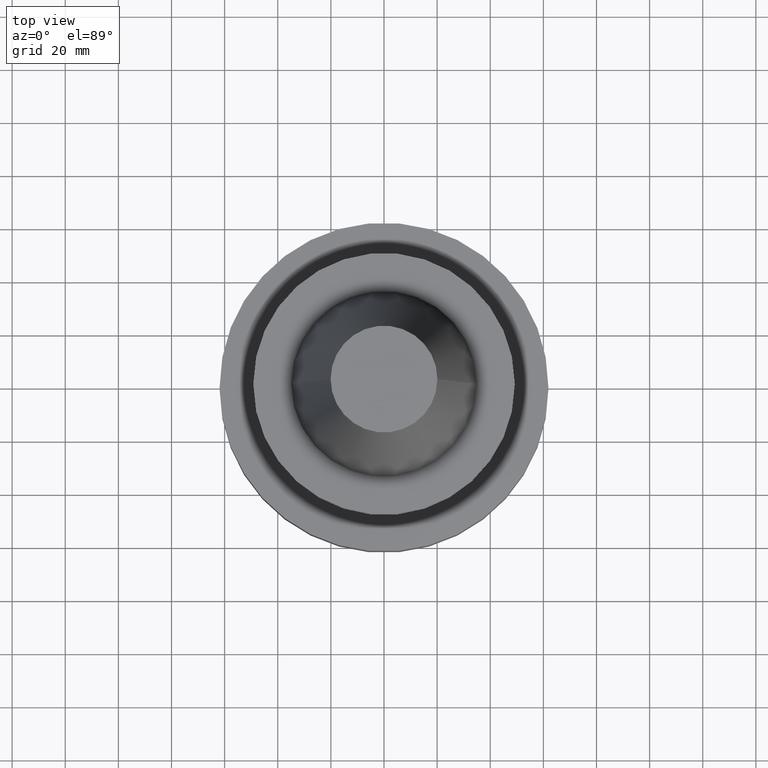
[diagram: clean part render]
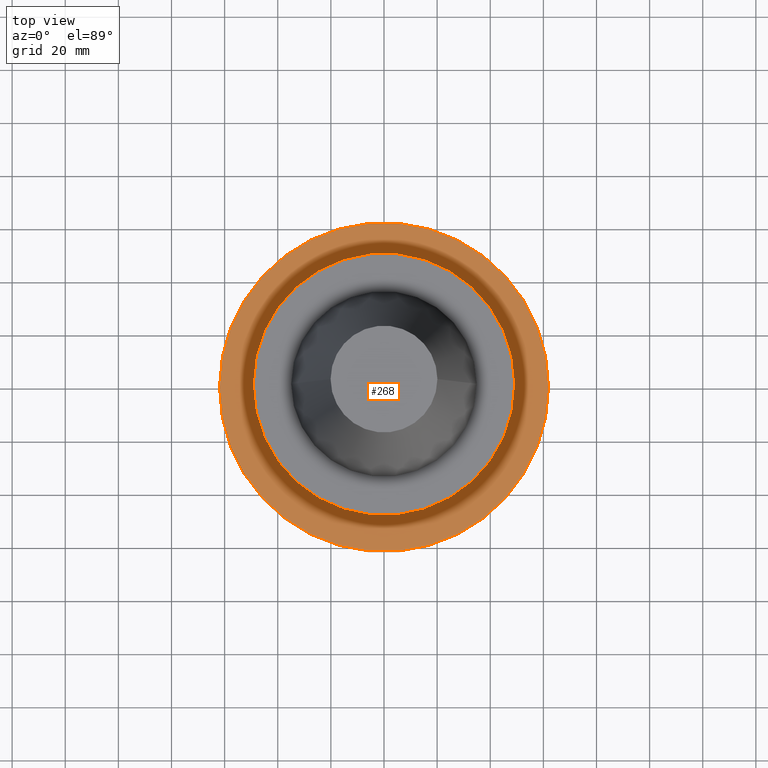
[diagram: same view with one face highlighted and labeled with its STEP entity id]
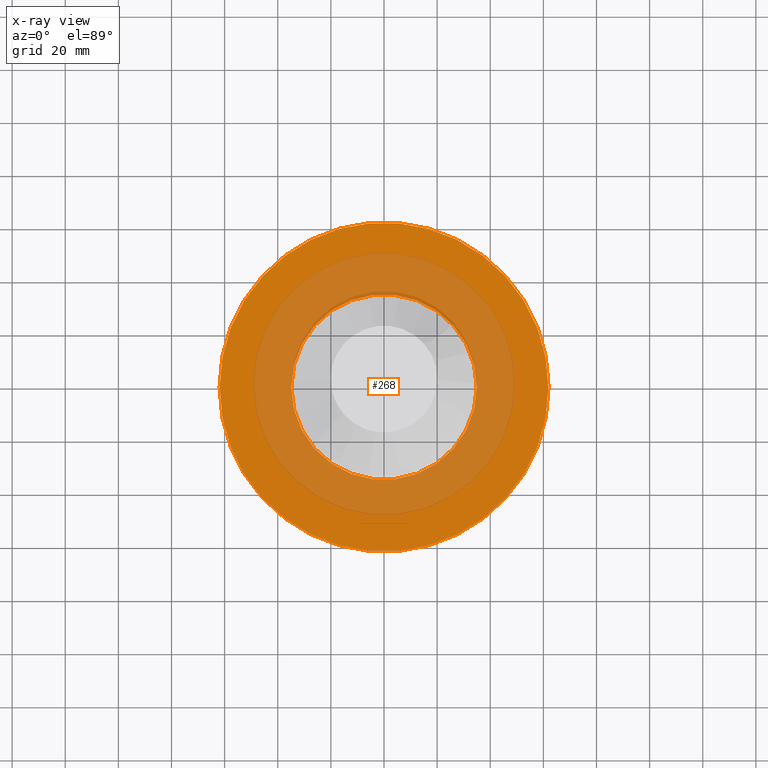
[diagram: x-ray of the same camera — body ghosted, the highlighted face saturated]
A machine part, top view. The second image highlights one B-rep face of the part: STEP entity #268.
The next image is the same camera in x-ray: the body ghosted, the highlighted face saturated — about 46% of this face is hidden behind the body in this view.
In plain terms, the highlighted planar face has unit normal (0, 0, -1).
Its self-contained STEP definition (entity closure, byte-faithful):
#13 = CIRCLE ( 'NONE', #634, 61.89999999999999858 ) ;
#34 = AXIS2_PLACEMENT_3D ( 'NONE', #431, #163, #1023 ) ;
#80 = FACE_BOUND ( 'NONE', #766, .T. ) ;
#143 = VERTEX_POINT ( 'NONE', #389 ) ;
#162 = EDGE_LOOP ( 'NONE', ( #929, #672 ) ) ;
#163 = DIRECTION ( 'NONE',  ( -0.000000000000000000, -0.000000000000000000, 1.000000000000000000 ) ) ;
#166 = DIRECTION ( 'NONE',  ( -1.000000000000000000, 0.000000000000000000, -0.000000000000000000 ) ) ;
#169 = CIRCLE ( 'NONE', #309, 34.92500000000000426 ) ;
#184 = DIRECTION ( 'NONE',  ( -0.000000000000000000, -0.000000000000000000, 1.000000000000000000 ) ) ;
#229 = ORIENTED_EDGE ( 'NONE', *, *, #674, .F. ) ;
#245 = FACE_OUTER_BOUND ( 'NONE', #162, .T. ) ;
#268 = ADVANCED_FACE ( 'NONE', ( #80, #245 ), #584, .F. ) ;
#275 = CARTESIAN_POINT ( 'NONE',  ( 0.000000000000000000, 0.000000000000000000, -73.09999999999999432 ) ) ;
#280 = AXIS2_PLACEMENT_3D ( 'NONE', #275, #866, #381 ) ;
#309 = AXIS2_PLACEMENT_3D ( 'NONE', #1017, #184, #339 ) ;
#314 = EDGE_CURVE ( 'NONE', #1047, #796, #169, .T. ) ;
#339 = DIRECTION ( 'NONE',  ( 1.000000000000000000, 0.000000000000000000, 0.000000000000000000 ) ) ;
#347 = CIRCLE ( 'NONE', #34, 61.89999999999999858 ) ;
#359 = VERTEX_POINT ( 'NONE', #579 ) ;
#362 = CARTESIAN_POINT ( 'NONE',  ( -34.92500000000000426, 4.277078946022131676E-15, -73.09999999999999432 ) ) ;
#381 = DIRECTION ( 'NONE',  ( 1.000000000000000000, 0.000000000000000000, 0.000000000000000000 ) ) ;
#389 = CARTESIAN_POINT ( 'NONE',  ( -61.89999999999999858, 7.580563686722116084E-15, -73.09999999999999432 ) ) ;
#391 = CARTESIAN_POINT ( 'NONE',  ( 34.92500000000000426, 0.000000000000000000, -73.09999999999999432 ) ) ;
#392 = DIRECTION ( 'NONE',  ( -0.000000000000000000, -0.000000000000000000, 1.000000000000000000 ) ) ;
#431 = CARTESIAN_POINT ( 'NONE',  ( 0.000000000000000000, 0.000000000000000000, -73.09999999999999432 ) ) ;
#445 = ORIENTED_EDGE ( 'NONE', *, *, #314, .F. ) ;
#472 = AXIS2_PLACEMENT_3D ( 'NONE', #691, #922, #166 ) ;
#476 = EDGE_CURVE ( 'NONE', #359, #143, #347, .T. ) ;
#486 = CIRCLE ( 'NONE', #280, 34.92500000000000426 ) ;
#579 = CARTESIAN_POINT ( 'NONE',  ( 61.89999999999999858, 0.000000000000000000, -73.09999999999999432 ) ) ;
#584 = PLANE ( 'NONE',  #472 ) ;
#618 = DIRECTION ( 'NONE',  ( 1.000000000000000000, 0.000000000000000000, 0.000000000000000000 ) ) ;
#634 = AXIS2_PLACEMENT_3D ( 'NONE', #1010, #392, #618 ) ;
#672 = ORIENTED_EDGE ( 'NONE', *, *, #934, .T. ) ;
#674 = EDGE_CURVE ( 'NONE', #796, #1047, #486, .T. ) ;
#691 = CARTESIAN_POINT ( 'NONE',  ( 0.000000000000000000, 34.92500000000000426, -73.09999999999999432 ) ) ;
#766 = EDGE_LOOP ( 'NONE', ( #229, #445 ) ) ;
#796 = VERTEX_POINT ( 'NONE', #391 ) ;
#866 = DIRECTION ( 'NONE',  ( -0.000000000000000000, -0.000000000000000000, 1.000000000000000000 ) ) ;
#922 = DIRECTION ( 'NONE',  ( 0.000000000000000000, 0.000000000000000000, -1.000000000000000000 ) ) ;
#929 = ORIENTED_EDGE ( 'NONE', *, *, #476, .T. ) ;
#934 = EDGE_CURVE ( 'NONE', #143, #359, #13, .T. ) ;
#1010 = CARTESIAN_POINT ( 'NONE',  ( 0.000000000000000000, 0.000000000000000000, -73.09999999999999432 ) ) ;
#1017 = CARTESIAN_POINT ( 'NONE',  ( 0.000000000000000000, 0.000000000000000000, -73.09999999999999432 ) ) ;
#1023 = DIRECTION ( 'NONE',  ( 1.000000000000000000, 0.000000000000000000, 0.000000000000000000 ) ) ;
#1047 = VERTEX_POINT ( 'NONE', #362 ) ;